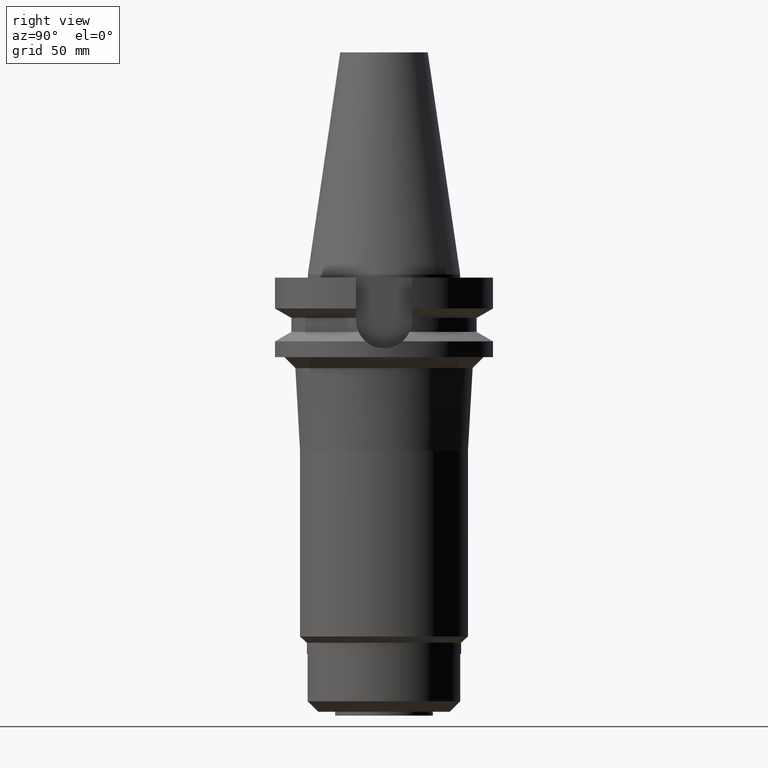
[diagram: clean part render]
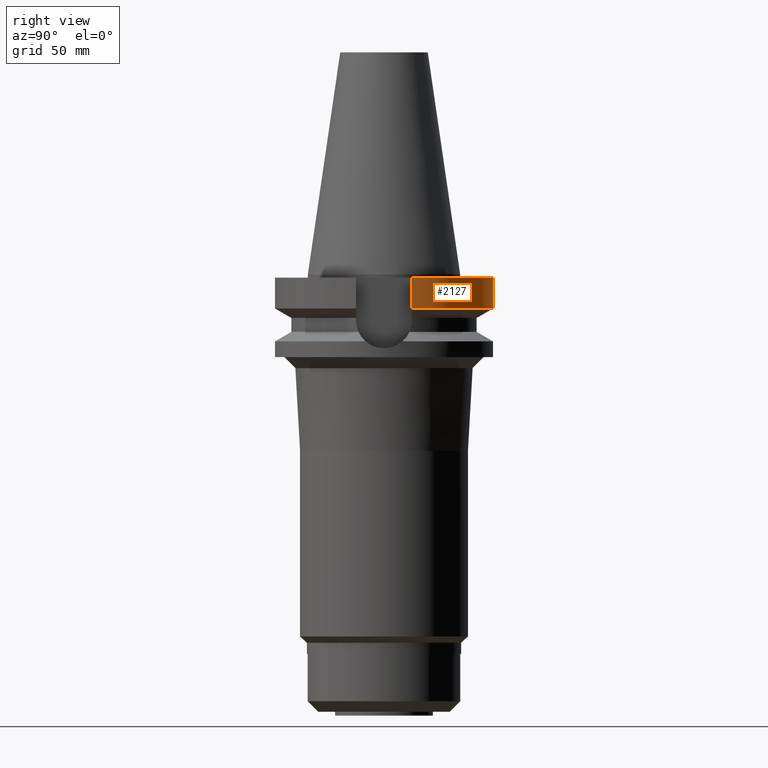
[diagram: same view with one face highlighted and labeled with its STEP entity id]
A machine part, right view. The second image highlights one B-rep face of the part: STEP entity #2127.
In plain terms, the highlighted cylindrical surface (partial cylindrical patch) has radius 50 mm, axis along (0, 0, -1).
Its self-contained STEP definition (entity closure, byte-faithful):
#743=CARTESIAN_POINT('',(4.832056912815E1,1.285000385726E1,-1.566265768273E1));
#797=CARTESIAN_POINT('',(0.E0,2.657606018830E-14,-1.5E0));
#798=DIRECTION('',(0.E0,0.E0,-1.E0));
#799=DIRECTION('',(-9.664114030784E-1,2.57E-1,0.E0));
#800=AXIS2_PLACEMENT_3D('',#797,#798,#799);
#805=CARTESIAN_POINT('',(0.E0,2.657606018830E-14,-1.5E0));
#806=DIRECTION('',(0.E0,0.E0,-1.E0));
#807=DIRECTION('',(0.E0,1.E0,0.E0));
#808=AXIS2_PLACEMENT_3D('',#805,#806,#807);
#1001=CARTESIAN_POINT('',(-4.832056912781E1,1.285000385852E1,
-1.566265767139E1));
#1022=CARTESIAN_POINT('',(0.E0,1.006319759054E-14,-1.566269223573E1));
#1023=DIRECTION('',(0.E0,0.E0,1.E0));
#1024=DIRECTION('',(9.664114030784E-1,2.57E-1,0.E0));
#1025=AXIS2_PLACEMENT_3D('',#1022,#1023,#1024);
#1030=CARTESIAN_POINT('',(0.E0,1.006319759054E-14,-1.566269223573E1));
#1031=DIRECTION('',(0.E0,0.E0,1.E0));
#1032=DIRECTION('',(0.E0,1.E0,0.E0));
#1033=AXIS2_PLACEMENT_3D('',#1030,#1031,#1032);
#1038=DIRECTION('',(7.245155820130E-8,2.724434502920E-7,-1.E0));
#1039=VECTOR('',#1038,1.416265767139E1);
#1040=CARTESIAN_POINT('',(-4.832057015392E1,1.285E1,-1.5E0));
#1041=LINE('',#1040,#1039);
#1045=DIRECTION('',(7.242780307648E-8,-2.723541219870E-7,1.E0));
#1046=VECTOR('',#1045,1.416265768273E1);
#1047=CARTESIAN_POINT('',(4.832056912815E1,1.285000385726E1,-1.566265768273E1));
#1048=LINE('',#1047,#1046);
#1267=CARTESIAN_POINT('',(-4.832057015392E1,1.285E1,-1.5E0));
#1268=VERTEX_POINT('',#1267);
#1269=CARTESIAN_POINT('',(-1.065814103640E-14,5.E1,-1.5E0));
#1270=CARTESIAN_POINT('',(4.832057015392E1,1.285E1,-1.5E0));
#1271=VERTEX_POINT('',#1269);
#1272=VERTEX_POINT('',#1270);
#1293=VERTEX_POINT('',#1001);
#1298=VERTEX_POINT('',#743);
#1299=CARTESIAN_POINT('',(-2.832769448824E-14,5.E1,-1.566269223573E1));
#1300=VERTEX_POINT('',#1299);
#2114=CARTESIAN_POINT('',(0.E0,2.657606018830E-14,1.1701E2));
#2115=DIRECTION('',(0.E0,0.E0,-1.E0));
#2116=DIRECTION('',(0.E0,-1.E0,0.E0));
#2117=AXIS2_PLACEMENT_3D('',#2114,#2115,#2116);
#2118=CYLINDRICAL_SURFACE('',#2117,5.E1);
#2119=ORIENTED_EDGE('',*,*,#2090,.T.);
#2120=ORIENTED_EDGE('',*,*,#2109,.F.);
#2121=ORIENTED_EDGE('',*,*,#2107,.F.);
#2122=ORIENTED_EDGE('',*,*,#1931,.T.);
#2123=ORIENTED_EDGE('',*,*,#1964,.F.);
#2124=ORIENTED_EDGE('',*,*,#1962,.F.);
#2125=EDGE_LOOP('',(#2119,#2120,#2121,#2122,#2123,#2124));
#2126=FACE_OUTER_BOUND('',#2125,.F.);
#801=CIRCLE('',#800,5.E1);
#809=CIRCLE('',#808,5.E1);
#1026=CIRCLE('',#1025,5.E1);
#1034=CIRCLE('',#1033,5.E1);
#1931=EDGE_CURVE('',#1298,#1272,#1048,.T.);
#1962=EDGE_CURVE('',#1268,#1271,#801,.T.);
#1964=EDGE_CURVE('',#1271,#1272,#809,.T.);
#2090=EDGE_CURVE('',#1268,#1293,#1041,.T.);
#2107=EDGE_CURVE('',#1298,#1300,#1026,.T.);
#2109=EDGE_CURVE('',#1300,#1293,#1034,.T.);
#2127=ADVANCED_FACE('',(#2126),#2118,.T.);